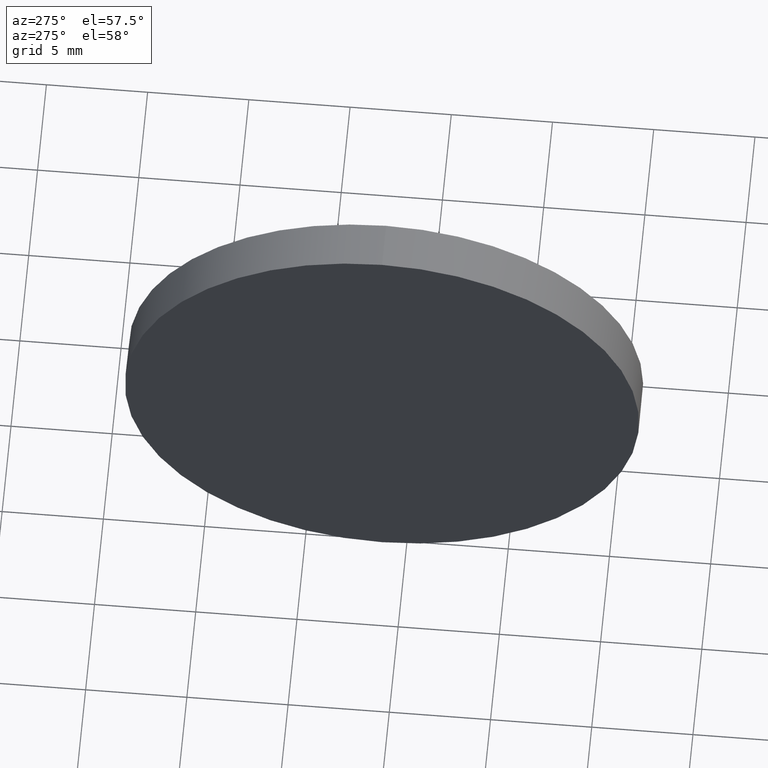
[diagram: clean part render]
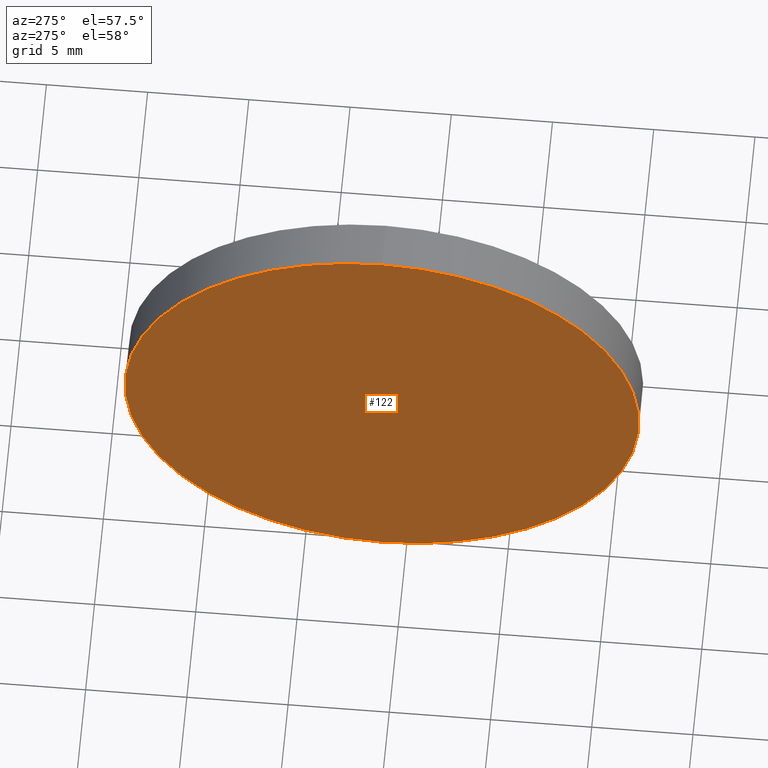
[diagram: same view with one face highlighted and labeled with its STEP entity id]
A machine part, auxiliary view. The second image highlights one B-rep face of the part: STEP entity #122.
In plain terms, the highlighted planar face has unit normal (1, 0, 0).
Its self-contained STEP definition (entity closure, byte-faithful):
#7 = DIRECTION ( 'NONE',  ( 0.0000000000000000000, 0.0000000000000000000, -1.000000000000000000 ) ) ;
#13 = DIRECTION ( 'NONE',  ( -1.000000000000000000, -0.0000000000000000000, -0.0000000000000000000 ) ) ;
#25 = AXIS2_PLACEMENT_3D ( 'NONE', #100, #80, #7 ) ;
#35 = VERTEX_POINT ( 'NONE', #60 ) ;
#44 = EDGE_CURVE ( 'NONE', #35, #76, #148, .T. ) ;
#45 = CIRCLE ( 'NONE', #79, 12.70000000000000300 ) ;
#54 = FACE_OUTER_BOUND ( 'NONE', #61, .T. ) ;
#55 = EDGE_CURVE ( 'NONE', #76, #35, #45, .T. ) ;
#56 = DIRECTION ( 'NONE',  ( -1.000000000000000000, -0.0000000000000000000, -0.0000000000000000000 ) ) ;
#60 = CARTESIAN_POINT ( 'NONE',  ( 119.5068341785477100, 71.19398908659370300, -12.70000000000000300 ) ) ;
#61 = EDGE_LOOP ( 'NONE', ( #120, #131 ) ) ;
#76 = VERTEX_POINT ( 'NONE', #163 ) ;
#79 = AXIS2_PLACEMENT_3D ( 'NONE', #104, #13, #135 ) ;
#80 = DIRECTION ( 'NONE',  ( 1.000000000000000000, 0.0000000000000000000, 0.0000000000000000000 ) ) ;
#100 = CARTESIAN_POINT ( 'NONE',  ( 119.5068341785477100, 71.19398908659370300, 0.0000000000000000000 ) ) ;
#104 = CARTESIAN_POINT ( 'NONE',  ( 119.5068341785477100, 71.19398908659370300, 0.0000000000000000000 ) ) ;
#120 = ORIENTED_EDGE ( 'NONE', *, *, #55, .T. ) ;
#122 = ADVANCED_FACE ( 'NONE', ( #54 ), #170, .F. ) ;
#124 = AXIS2_PLACEMENT_3D ( 'NONE', #171, #56, #159 ) ;
#131 = ORIENTED_EDGE ( 'NONE', *, *, #44, .T. ) ;
#135 = DIRECTION ( 'NONE',  ( 0.0000000000000000000, 0.0000000000000000000, 1.000000000000000000 ) ) ;
#148 = CIRCLE ( 'NONE', #124, 12.70000000000000300 ) ;
#159 = DIRECTION ( 'NONE',  ( 0.0000000000000000000, 0.0000000000000000000, 1.000000000000000000 ) ) ;
#163 = CARTESIAN_POINT ( 'NONE',  ( 119.5068341785477100, 71.19398908659370300, 12.70000000000000300 ) ) ;
#170 = PLANE ( 'NONE',  #25 ) ;
#171 = CARTESIAN_POINT ( 'NONE',  ( 119.5068341785477100, 71.19398908659370300, 0.0000000000000000000 ) ) ;